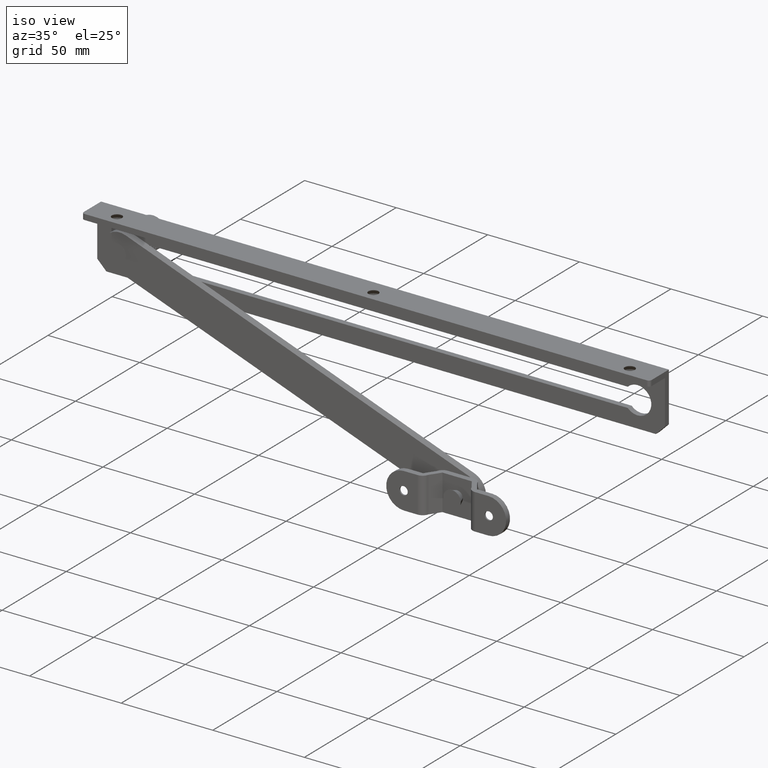
[diagram: clean part render]
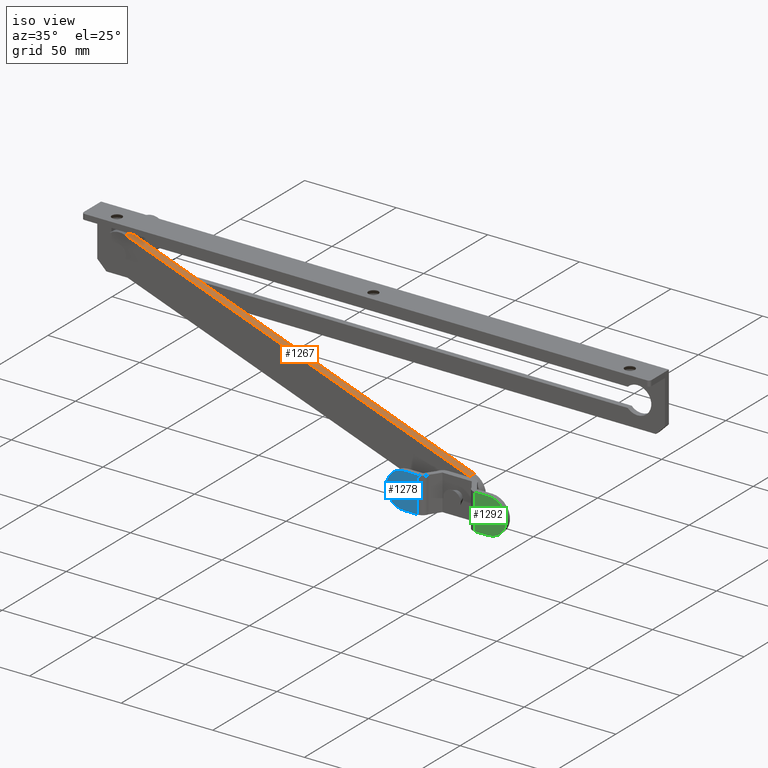
[diagram: same view with three faces highlighted in distinct colors, each labeled with its STEP entity id]
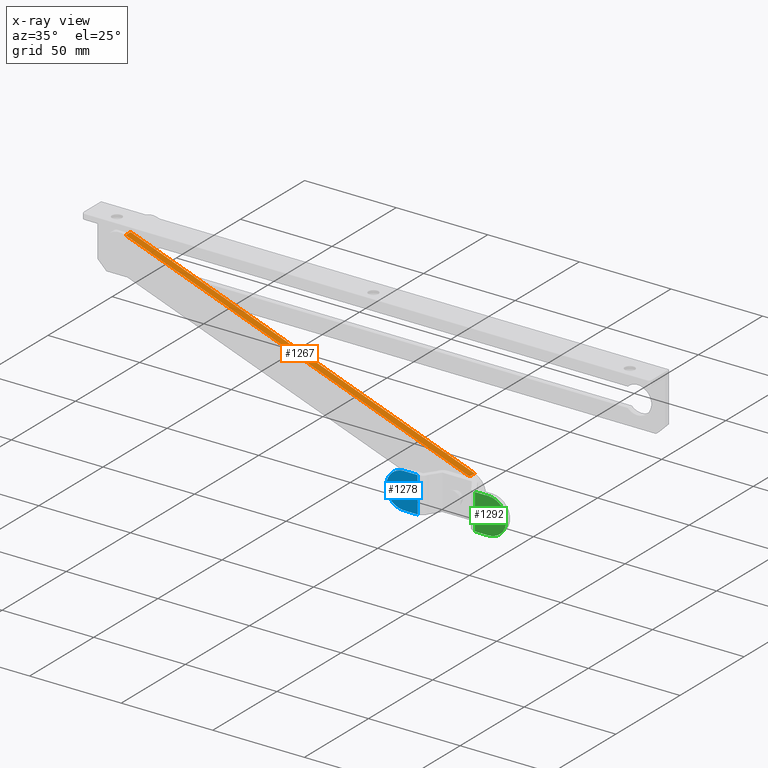
[diagram: x-ray of the same camera — body ghosted, the three highlighted faces saturated]
A machine part, iso view with three faces highlighted in distinct colors.
The next image is the same camera in x-ray (body ghosted, the three faces saturated) — at least one of them is partly hidden behind the body in this view.
Their STEP definitions:

[orange] entity #1267 — the highlighted planar face has unit normal (0.3442, 0, 0.9389).
#115=LINE('',#2093,#193);
#116=LINE('',#2095,#194);
#117=LINE('',#2097,#195);
#118=LINE('',#2098,#196);
#193=VECTOR('',#1697,200.);
#194=VECTOR('',#1698,4.);
#195=VECTOR('',#1699,200.);
#196=VECTOR('',#1700,4.);
#257=PLANE('',#1400);
#405=FACE_OUTER_BOUND('',#519,.T.);
#519=EDGE_LOOP('',(#1059,#1060,#1061,#1062));
#711=VERTEX_POINT('',#2091);
#712=VERTEX_POINT('',#2092);
#713=VERTEX_POINT('',#2094);
#714=VERTEX_POINT('',#2096);
#840=EDGE_CURVE('',#711,#712,#115,.T.);
#841=EDGE_CURVE('',#712,#713,#116,.T.);
#842=EDGE_CURVE('',#714,#713,#117,.T.);
#843=EDGE_CURVE('',#711,#714,#118,.T.);
#1059=ORIENTED_EDGE('',*,*,#840,.T.);
#1060=ORIENTED_EDGE('',*,*,#841,.T.);
#1061=ORIENTED_EDGE('',*,*,#842,.F.);
#1062=ORIENTED_EDGE('',*,*,#843,.F.);
#1267=ADVANCED_FACE('',(#405),#257,.T.);
#1400=AXIS2_PLACEMENT_3D('',#2090,#1695,#1696);
#1695=DIRECTION('center_axis',(-4.44089209850062E-17,0.,-1.));
#1696=DIRECTION('ref_axis',(-1.,0.,0.));
#1697=DIRECTION('',(-1.,0.,4.44089209850063E-17));
#1698=DIRECTION('',(0.,1.,0.));
#1699=DIRECTION('',(-1.,0.,4.44089209850063E-17));
#1700=DIRECTION('',(0.,1.,0.));
#2090=CARTESIAN_POINT('Origin',(0.,0.,-9.5));
#2091=CARTESIAN_POINT('',(0.,0.,-9.5));
#2092=CARTESIAN_POINT('',(-200.,0.,-9.49999999999999));
#2093=CARTESIAN_POINT('',(0.,0.,-9.5));
#2094=CARTESIAN_POINT('',(-200.,4.,-9.49999999999999));
#2095=CARTESIAN_POINT('',(-200.,0.,-9.49999999999999));
#2096=CARTESIAN_POINT('',(0.,4.,-9.5));
#2097=CARTESIAN_POINT('',(0.,4.,-9.5));
#2098=CARTESIAN_POINT('',(-4.21884749357559E-16,0.,-9.5));

[blue] entity #1278 — the highlighted planar face has unit normal (-0, 1, -0).
#119=LINE('',#2134,#197);
#121=LINE('',#2140,#199);
#122=LINE('',#2143,#200);
#197=VECTOR('',#1749,19.5);
#199=VECTOR('',#1755,7.37701665379258);
#200=VECTOR('',#1758,7.37701665379258);
#260=PLANE('',#1426);
#346=FACE_BOUND('',#538,.T.);
#416=FACE_OUTER_BOUND('',#537,.T.);
#537=EDGE_LOOP('',(#1095,#1096,#1097,#1098));
#538=EDGE_LOOP('',(#1099));
#625=CIRCLE('',#1419,2.25);
#630=CIRCLE('',#1427,9.75);
#720=VERTEX_POINT('',#2122);
#724=VERTEX_POINT('',#2131);
#725=VERTEX_POINT('',#2133);
#727=VERTEX_POINT('',#2139);
#728=VERTEX_POINT('',#2141);
#853=EDGE_CURVE('',#720,#720,#625,.T.);
#857=EDGE_CURVE('',#724,#725,#119,.T.);
#860=EDGE_CURVE('',#727,#724,#121,.T.);
#861=EDGE_CURVE('',#728,#727,#630,.T.);
#862=EDGE_CURVE('',#725,#728,#122,.T.);
#1095=ORIENTED_EDGE('',*,*,#857,.F.);
#1096=ORIENTED_EDGE('',*,*,#860,.F.);
#1097=ORIENTED_EDGE('',*,*,#861,.F.);
#1098=ORIENTED_EDGE('',*,*,#862,.F.);
#1099=ORIENTED_EDGE('',*,*,#853,.T.);
#1278=ADVANCED_FACE('',(#416,#346),#260,.F.);
#1419=AXIS2_PLACEMENT_3D('',#2123,#1737,#1738);
#1426=AXIS2_PLACEMENT_3D('',#2138,#1753,#1754);
#1427=AXIS2_PLACEMENT_3D('',#2142,#1756,#1757);
#1737=DIRECTION('center_axis',(0.,-1.,0.));
#1738=DIRECTION('ref_axis',(1.,0.,0.));
#1749=DIRECTION('',(-6.12323399573677E-16,0.,-1.));
#1753=DIRECTION('center_axis',(0.,-1.,0.));
#1754=DIRECTION('ref_axis',(5.32907051820075E-16,0.,1.));
#1755=DIRECTION('',(-1.,0.,4.14950417418093E-16));
#1756=DIRECTION('center_axis',(0.,-1.,0.));
#1757=DIRECTION('ref_axis',(6.12323399573677E-16,0.,1.));
#1758=DIRECTION('',(1.,0.,-6.12323399573677E-16));
#2122=CARTESIAN_POINT('',(10.,11.5,9.75));
#2123=CARTESIAN_POINT('Origin',(12.25,11.5,9.75));
#2131=CARTESIAN_POINT('',(4.62298334620743,11.5,19.5));
#2133=CARTESIAN_POINT('',(4.62298334620742,11.5,-9.64053752159216E-15));
#2134=CARTESIAN_POINT('',(4.62298334620742,11.5,-9.64053752159216E-15));
#2138=CARTESIAN_POINT('Origin',(8.87034781032724,11.5,9.74999999999999));
#2139=CARTESIAN_POINT('',(12.,11.5,19.5));
#2140=CARTESIAN_POINT('',(0.750000000000015,11.5,19.5));
#2141=CARTESIAN_POINT('',(12.,11.5,-1.41576574377541E-14));
#2142=CARTESIAN_POINT('Origin',(12.,11.5,9.74999999999999));
#2143=CARTESIAN_POINT('',(12.,11.5,-1.41576574377541E-14));

[green] entity #1292 — the highlighted planar face has unit normal (0, -1, 0).
#126=LINE('',#2154,#204);
#134=LINE('',#2176,#212);
#153=LINE('',#2223,#231);
#204=VECTOR('',#1766,7.37701665379258);
#212=VECTOR('',#1782,19.5);
#231=VECTOR('',#1835,7.37701665379258);
#269=PLANE('',#1450);
#350=FACE_BOUND('',#556,.T.);
#430=FACE_OUTER_BOUND('',#555,.T.);
#555=EDGE_LOOP('',(#1167,#1168,#1169,#1170));
#556=EDGE_LOOP('',(#1171));
#622=CIRCLE('',#1414,2.25);
#639=CIRCLE('',#1448,9.75);
#717=VERTEX_POINT('',#2114);
#732=VERTEX_POINT('',#2151);
#733=VERTEX_POINT('',#2153);
#743=VERTEX_POINT('',#2174);
#754=VERTEX_POINT('',#2217);
#850=EDGE_CURVE('',#717,#717,#622,.T.);
#867=EDGE_CURVE('',#733,#732,#126,.T.);
#878=EDGE_CURVE('',#743,#732,#134,.T.);
#899=EDGE_CURVE('',#754,#733,#639,.T.);
#902=EDGE_CURVE('',#743,#754,#153,.T.);
#1167=ORIENTED_EDGE('',*,*,#878,.F.);
#1168=ORIENTED_EDGE('',*,*,#902,.T.);
#1169=ORIENTED_EDGE('',*,*,#899,.T.);
#1170=ORIENTED_EDGE('',*,*,#867,.T.);
#1171=ORIENTED_EDGE('',*,*,#850,.T.);
#1292=ADVANCED_FACE('',(#430,#350),#269,.T.);
#1414=AXIS2_PLACEMENT_3D('',#2115,#1727,#1728);
#1448=AXIS2_PLACEMENT_3D('',#2218,#1827,#1828);
#1450=AXIS2_PLACEMENT_3D('',#2222,#1833,#1834);
#1727=DIRECTION('center_axis',(0.,-1.,0.));
#1728=DIRECTION('ref_axis',(1.,0.,0.));
#1766=DIRECTION('',(1.,0.,-1.97372982155583E-16));
#1782=DIRECTION('',(0.,0.,1.));
#1827=DIRECTION('center_axis',(0.,1.,0.));
#1828=DIRECTION('ref_axis',(0.,0.,1.));
#1833=DIRECTION('center_axis',(0.,1.,0.));
#1834=DIRECTION('ref_axis',(0.,0.,1.));
#1835=DIRECTION('',(-1.,0.,0.));
#2114=CARTESIAN_POINT('',(-36.5,11.5,9.75));
#2115=CARTESIAN_POINT('Origin',(-34.25,11.5,9.75));
#2151=CARTESIAN_POINT('',(-26.6229833462074,11.5,19.5));
#2153=CARTESIAN_POINT('',(-34.,11.5,19.5));
#2154=CARTESIAN_POINT('',(-22.75,11.5,19.5));
#2174=CARTESIAN_POINT('',(-26.6229833462074,11.5,0.));
#2176=CARTESIAN_POINT('',(-26.6229833462074,11.5,0.));
#2217=CARTESIAN_POINT('',(-34.,11.5,0.));
#2218=CARTESIAN_POINT('Origin',(-34.,11.5,9.75));
#2222=CARTESIAN_POINT('Origin',(-30.8703478103272,11.5,9.75));
#2223=CARTESIAN_POINT('',(-34.,11.5,0.));